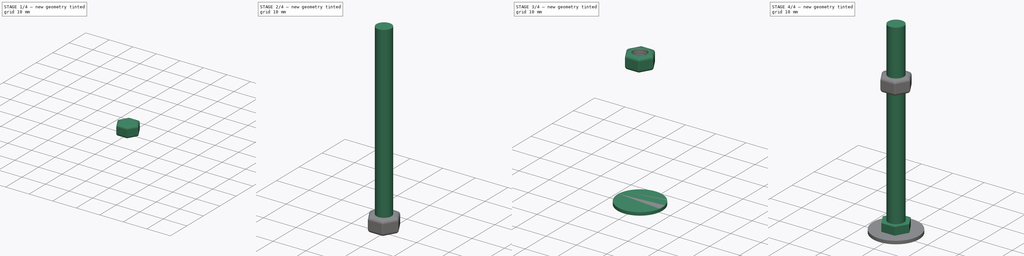
[diagram: build sequence overview — one tinted view per stage of 4, left to right]
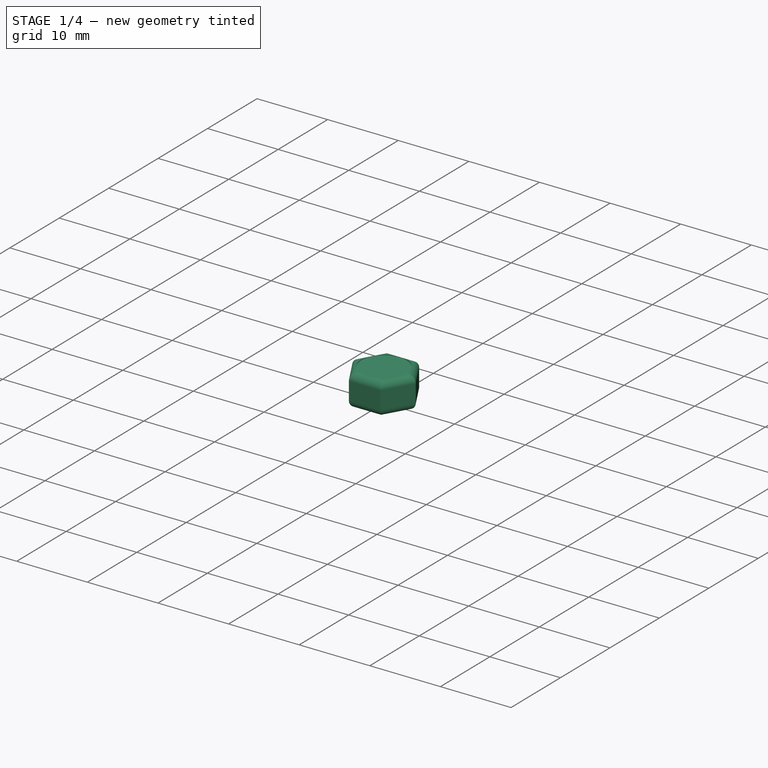
[diagram: stage 1 of 4 — iso view after this stage's code; geometry added in this stage tinted green]
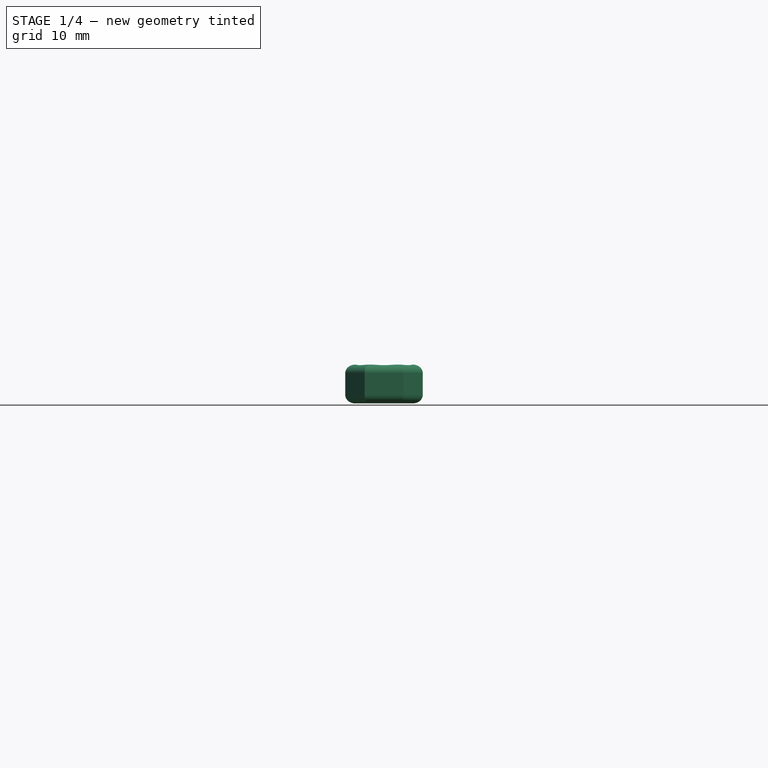
[diagram: stage 1 of 4 — front view after this stage's code; geometry added in this stage tinted green]
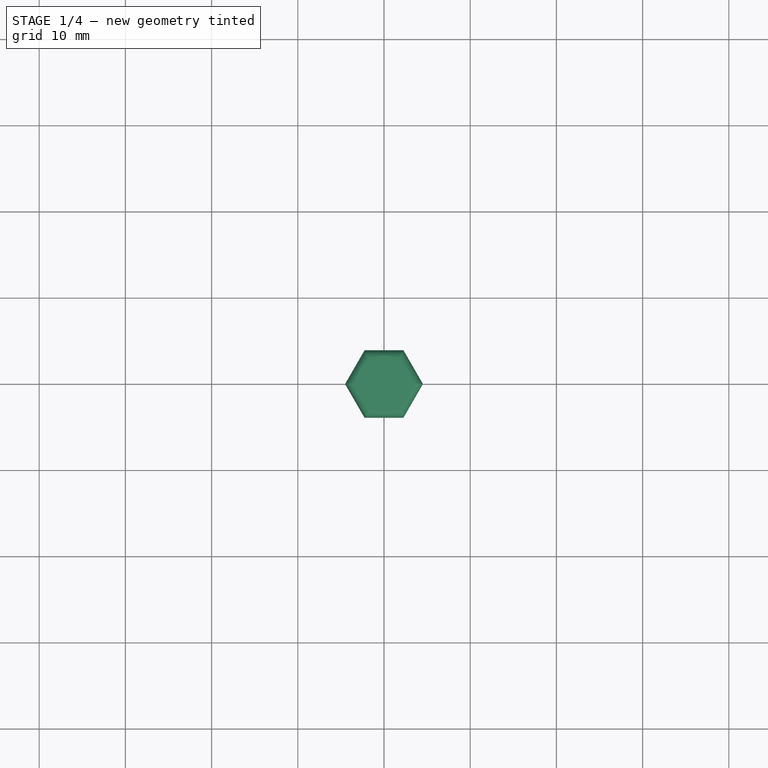
[diagram: stage 1 of 4 — top view after this stage's code; geometry added in this stage tinted green]
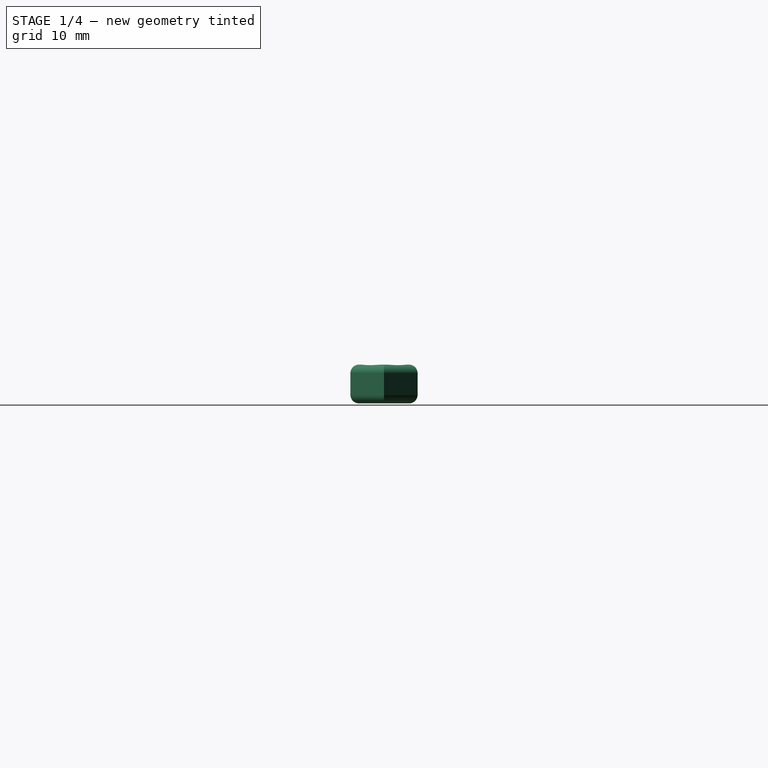
[diagram: stage 1 of 4 — right view after this stage's code; geometry added in this stage tinted green]
FCSTD DOCUMENT  (FreeCAD 1.1R20260325 (Git shallow))
Label: Counterbore2x_5_x_60_mm
License: All rights reserved
LicenseURL: http://en.wikipedia.org/wiki/All_rights_reserved
objects: App::Point×9, Sketcher::SketchObject×8, PartDesign::Body×5, App::Part×4, PartDesign::Pad×3, PartDesign::Hole×3, PartDesign::Fillet×2, App::LinkGroup×2, Spreadsheet::Sheet×1, PartDesign::Revolution×1, PartDesign::AdditiveHelix×1, Part::Cylinder×1, App::Link×1, Part::Cut×1
note: 53 computed .brp shape members not serialized (recipe doc carries the construction recipe); baked Part::Feature solids carry a one-line shape summary decoded from their .brp

FEATURE [App::Part] Part  label="Thread, Part"
  Group = -> [Body]
  Origin = -> Origin001
FEATURE [Sketcher::SketchObject] Sketch003
  ArcFitTolerance = 0
  AttachmentSupport = -> [XY_Plane002]
  ExternalTypes = [0]
  FullyConstrained = true
  MakeInternals = false
  MapMode = 5
  _ExternalGeoVersion = 0
  sketch-geometry (7):
    g0: LineSegment StartX=4.5 StartY=4e-16 StartZ=0 EndX=2.25 EndY=3.89711 EndZ=0
    g1: LineSegment StartX=2.25 StartY=3.89711 StartZ=0 EndX=-2.25 EndY=3.89711 EndZ=0
    g2: LineSegment StartX=-2.25 StartY=3.89711 StartZ=0 EndX=-4.5 EndY=0 EndZ=0
    g3: LineSegment StartX=-4.5 StartY=0 StartZ=0 EndX=-2.25 EndY=-3.89711 EndZ=0
    g4: LineSegment StartX=-2.25 StartY=-3.89711 StartZ=0 EndX=2.25 EndY=-3.89711 EndZ=0
    g5: LineSegment StartX=2.25 StartY=-3.89711 StartZ=0 EndX=4.5 EndY=4e-16 EndZ=0
    g6: Circle [constr] CenterX=0 CenterY=0 CenterZ=0 NormalX=0 NormalY=0 NormalZ=1 AngleXU=0 Radius=4.5
  constraints (16):
    c: Coincident(g0,g1)
    c: Coincident(g1,g2)
    c: Coincident(g2,g3)
    c: Coincident(g3,g4)
    c: Coincident(g4,g5)
    c: Coincident(g5,g0)
    c: Equal(g0, g1-g5) x5
    c: PointOnObject(g0,g6)
    c: PointOnObject(g1,g6)
    c: PointOnObject(g2,g6)
    c: PointOnObject(g3,g6)
    c: PointOnObject(g4,g6)
    c: PointOnObject(g5,g6)
    c: Coincident(g6,g-1)
    c: PointOnObject(g2,g-1)
    c: DistanceX(g6,g0) = 4.5
FEATURE [PartDesign::Pad] Pad001  label="Nut"
  Direction = (0,0,1)
  Length = 4.5
  Length2 = 10
  Profile = -> Sketch003
  ReferenceAxis = -> Sketch003 [N_Axis]
  SideType = 0
  Suppressed = false
  Type = 0
  Type2 = 0
FEATURE [PartDesign::Fillet] Fillet
  Base = -> Pad001 [Edge16,Edge18,Edge4,Edge7,Edge10,Edge13,Edge15,Edge12,Edge9,Edge6,Edge3,Edge17]
  BaseFeature = -> Pad001
  Radius = 1
  SupportTransform = false
  Suppressed = false
  UseAllEdges = false
FEATURE [PartDesign::Body] Body002  label="Washer, Body"
  AllowCompound = true
  Group = -> [Sketch004,Pad002,Sketch006,Hole]
  Origin = -> Origin003
  Placement = pos=(0,0,55.5) rot=(0,0,1;0rad)
  Tip = -> Hole
  expr: .Placement.Base.z = Spreadsheet.threadheight + Spreadsheet.threadfree - 1
FEATURE [App::Part] Part002  label="Washer, Part"
  Group = -> [Body002]
  Origin = -> Origin006
FEATURE [Sketcher::SketchObject] Sketch007
  ArcFitTolerance = 0
  AttachmentSupport = -> [Fillet]
  ExternalTypes = [0]
  FullyConstrained = true
  MakeInternals = false
  MapMode = 5
  Placement = pos=(0,0,4.5) rot=(0,0,1;0rad)
  _ExternalGeoVersion = 0
  sketch-geometry (1):
    g0: Circle CenterX=0 CenterY=0 CenterZ=0 NormalX=0 NormalY=0 NormalZ=1 AngleXU=0 Radius=3.25
  constraints (2):
    c: Coincident(g0,g-1)
    c: Diameter(g0) = 6.5
FEATURE [PartDesign::Hole] Hole001
  BaseFeature = -> Fillet
  BaseProfileType = 6
  CustomThreadClearance = 0
  Depth = 0.1
  DepthType = 0
  Diameter = 6.5
  DrillForDepth = false
  DrillPoint = 0
  DrillPointAngle = 118
  HoleCutCountersinkAngle = 90
  HoleCutCustomValues = false
  HoleCutDepth = 0
  HoleCutDiameter = 6.1
  HoleCutType = 0
  ModelThread = false
  Profile = -> Sketch007
  Suppressed = false
  Tapered = false
  TaperedAngle = 90
  ThreadClass = 0
  ThreadDepth = 0.1
  ThreadDepthType = 0
  ThreadDiameter = 6.5
  ThreadDirection = 0
  ThreadFit = 0
  ThreadSize = 0
  ThreadType = 0
  Threaded = false
  UseCustomThreadClearance = false
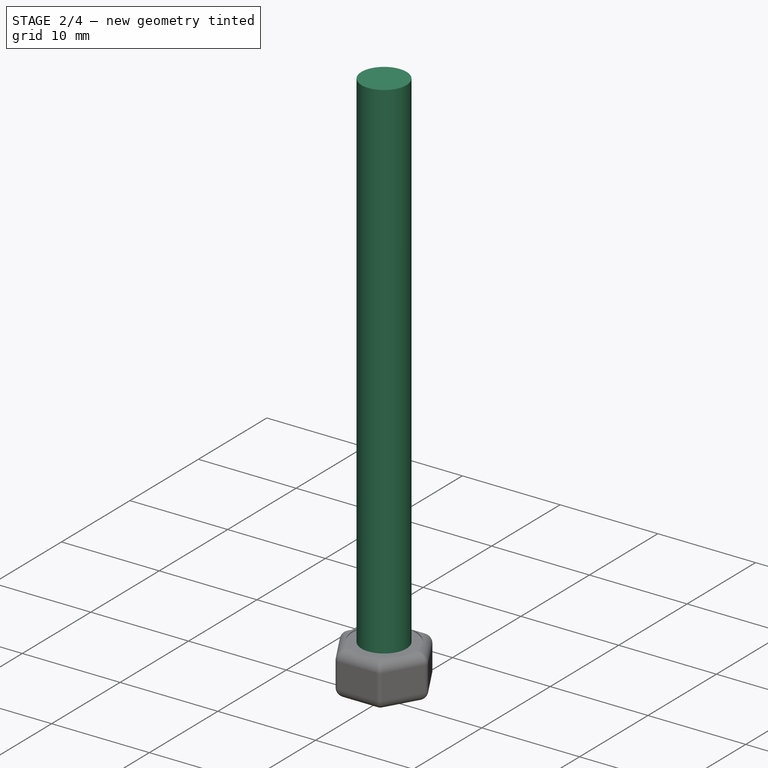
[diagram: stage 2 of 4 — iso view after this stage's code; geometry added in this stage tinted green]
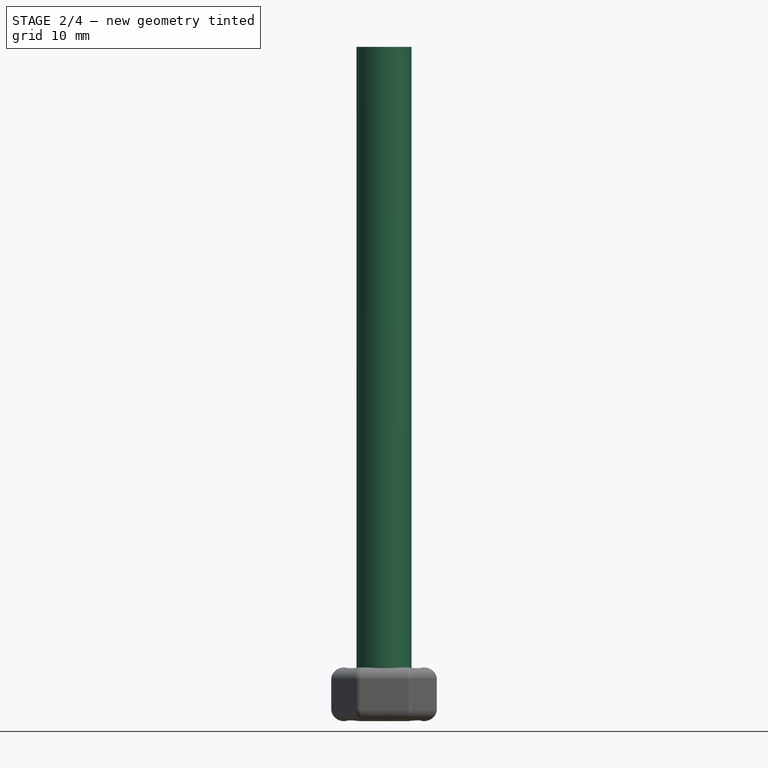
[diagram: stage 2 of 4 — front view after this stage's code; geometry added in this stage tinted green]
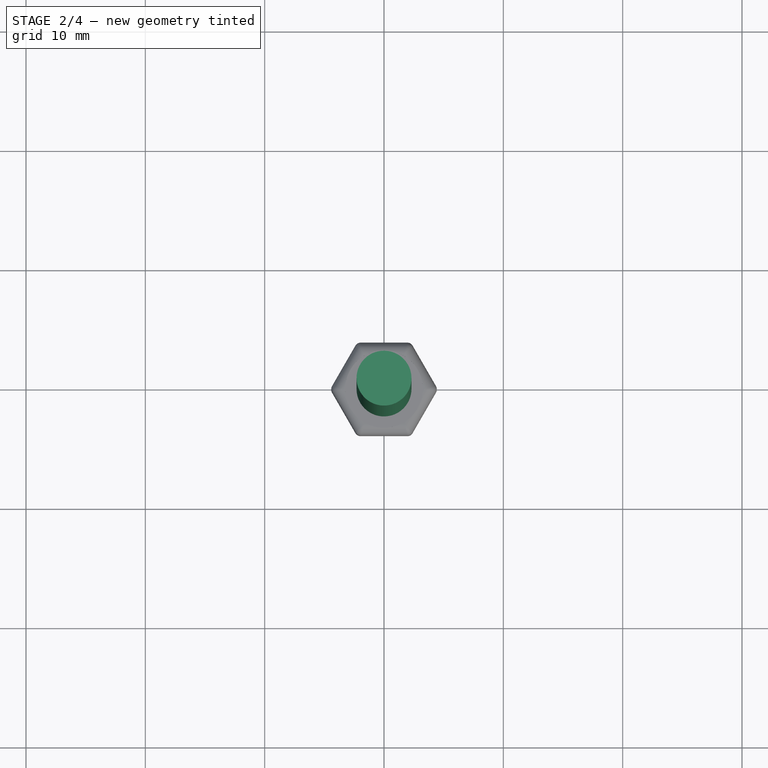
[diagram: stage 2 of 4 — top view after this stage's code; geometry added in this stage tinted green]
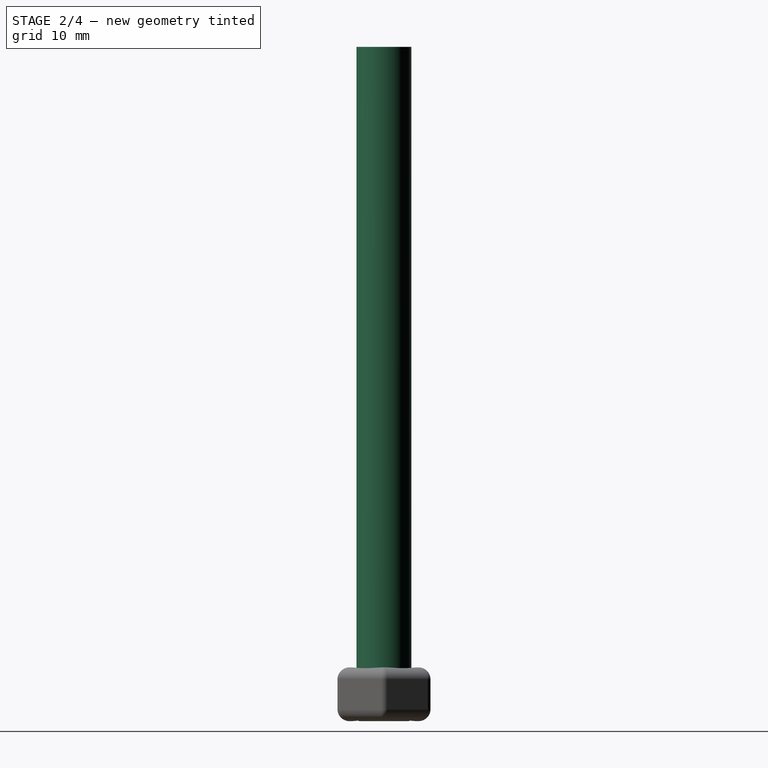
[diagram: stage 2 of 4 — right view after this stage's code; geometry added in this stage tinted green]
FEATURE [Spreadsheet::Sheet] Spreadsheet  label="settings"
  cells = A1='Settings (set here):; A2='Bolt diameter; B2(boltdiameter)=4.6; A3='Bolt height; B3(boltheight)=60; A4='Head diameter; B4(headdiameter)=8.45; A5='Head height; B5(headheight)=3.5; A6='No thread height; B6(threadfree)=1; A7='Thread jump; B7(threadjump)=0.8; A8='Calculated (not change):; A9='Bolt radius; B9(boltradius)==boltdiameter / 2; A10='Head radius; B10(headradius)==headdiameter / 2; A11='Thread core height; B11(coreheight)==boltheight - headheight; A12='Thread height; B12(threadheight)==coreheight - threadfree
FEATURE [Sketcher::SketchObject] Sketch  label="Core, Pattern"
  ArcFitTolerance = 0
  AttachmentSupport = -> [XZ_Plane]
  ExternalTypes = [0]
  FullyConstrained = true
  MakeInternals = false
  MapMode = 5
  Placement = pos=(0,0,0) rot=(1,0,0;1.5708rad)
  _ExternalGeoVersion = 0
  expr: Constraints[13] = Spreadsheet.boltradius
  expr: Constraints[6] = Spreadsheet.boltheight - Spreadsheet.headheight
  sketch-geometry (5):
    g0: LineSegment StartX=0 StartY=0 StartZ=0 EndX=2.1 EndY=0 EndZ=0
    g1: LineSegment StartX=2.3 StartY=0.2 StartZ=0 EndX=2.3 EndY=56.5 EndZ=0
    g2: LineSegment StartX=2.3 StartY=56.5 StartZ=0 EndX=0 EndY=56.5 EndZ=0
    g3: LineSegment StartX=0 StartY=56.5 StartZ=0 EndX=0 EndY=0 EndZ=0
    g4: LineSegment StartX=2.1 StartY=0 StartZ=0 EndX=2.3 EndY=0.2 EndZ=0
  constraints (14):
    c: Coincident(g-1,g0)
    c: Vertical(g1)
    c: PointOnObject(g2,g-2)
    c: Horizontal(g2)
    c: Coincident(g2,g3)
    c: Coincident(g3,g0)
    c: DistanceY(g3,g3) = 56.5
    c: PointOnObject(g0,g-1)
    c: Coincident(g4,g0)
    c: Coincident(g4,g1)
    c: DistanceX(g0,g1) = 0.2
    c: DistanceY(g0,g1) = 0.2
    c: Coincident(g1,g2)
    c: DistanceX(g0,g1) = 2.3
FEATURE [PartDesign::Revolution] Revolution  label="Core"
  Angle = 360
  Angle2 = 0
  Axis = (0,2e-16,1)
  Base = (0,0,0)
  FuseOrder = 0
  Placement = pos=(0,0,0) rot=(1,0,0;1.5708rad)
  Profile = -> Sketch
  ReferenceAxis = -> Sketch [V_Axis]
  Reversed = true
  Suppressed = false
  Type = 0
FEATURE [Sketcher::SketchObject] Sketch008
  ArcFitTolerance = 0
  AttachmentSupport = -> [Hole001]
  ExternalTypes = [0]
  FullyConstrained = true
  MakeInternals = false
  MapMode = 5
  Placement = pos=(0,0,0) rot=(1,0,0;3.14159rad)
  _ExternalGeoVersion = 0
  sketch-geometry (1):
    g0: Circle CenterX=0 CenterY=0 CenterZ=0 NormalX=0 NormalY=0 NormalZ=1 AngleXU=0 Radius=3.25
  constraints (2):
    c: Coincident(g0,g-1)
    c: Diameter(g0) = 6.5
FEATURE [PartDesign::Hole] Hole002
  BaseFeature = -> Hole001
  BaseProfileType = 6
  CustomThreadClearance = 0
  Depth = 0.1
  DepthType = 0
  Diameter = 6.5
  DrillForDepth = false
  DrillPoint = 0
  DrillPointAngle = 118
  HoleCutCountersinkAngle = 90
  HoleCutCustomValues = false
  HoleCutDepth = 0
  HoleCutDiameter = 6.1
  HoleCutType = 0
  ModelThread = false
  Profile = -> Sketch008
  Suppressed = false
  Tapered = false
  TaperedAngle = 90
  ThreadClass = 0
  ThreadDepth = 0.1
  ThreadDepthType = 0
  ThreadDiameter = 6.5
  ThreadDirection = 0
  ThreadFit = 0
  ThreadSize = 0
  ThreadType = 0
  Threaded = false
  UseCustomThreadClearance = false
FEATURE [PartDesign::Fillet] Fillet001
  Base = -> Hole002 [Edge27,Edge12,Edge8,Edge32,Edge75,Edge71]
  BaseFeature = -> Hole002
  Radius = 0.5
  SupportTransform = false
  Suppressed = false
  UseAllEdges = false
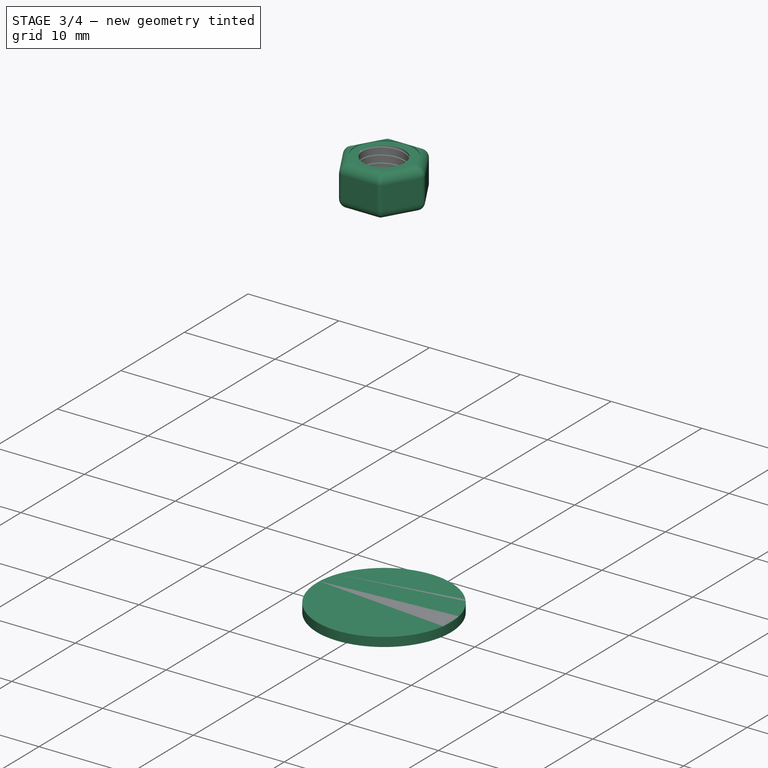
[diagram: stage 3 of 4 — iso view after this stage's code; geometry added in this stage tinted green]
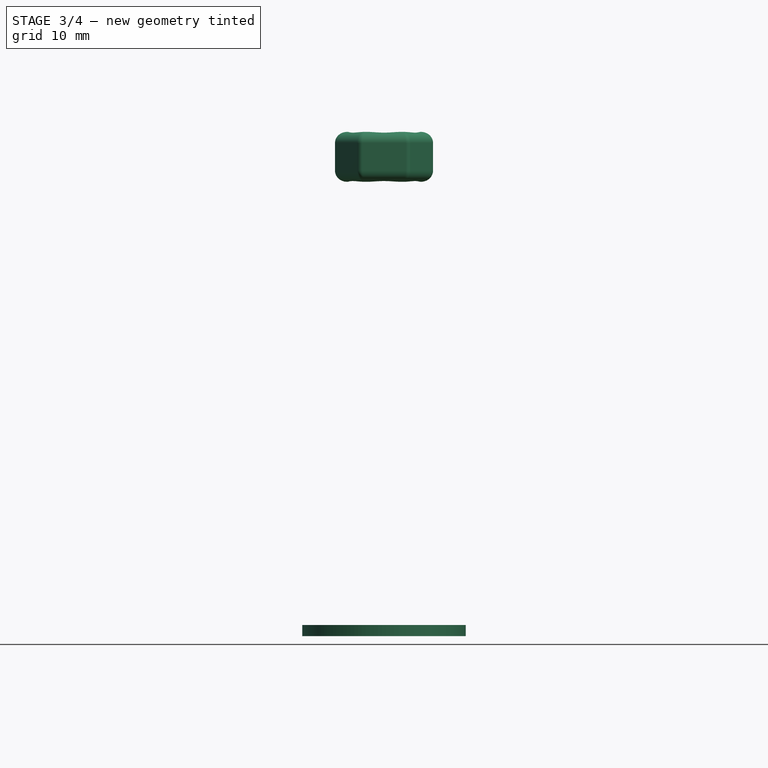
[diagram: stage 3 of 4 — front view after this stage's code; geometry added in this stage tinted green]
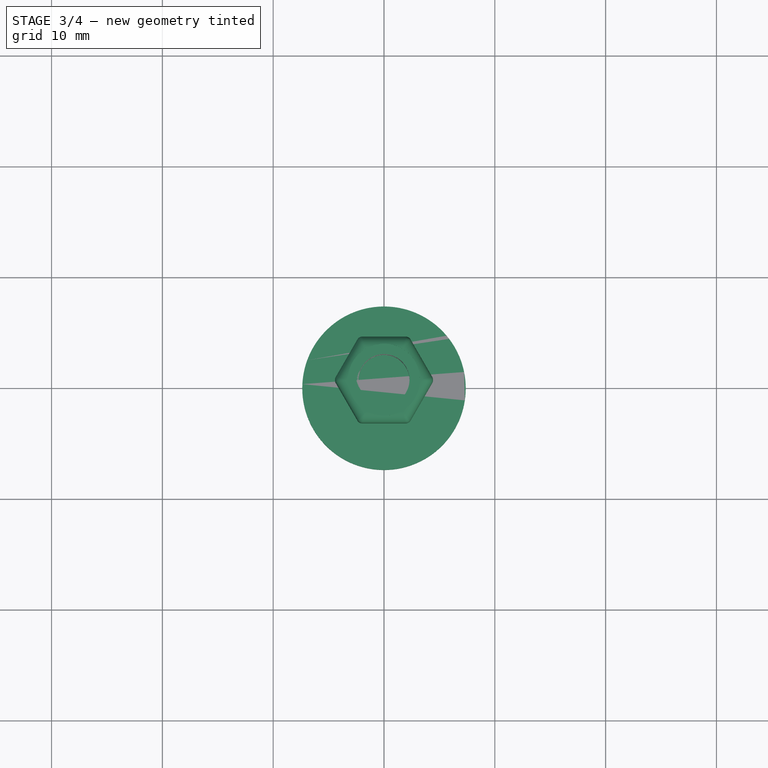
[diagram: stage 3 of 4 — top view after this stage's code; geometry added in this stage tinted green]
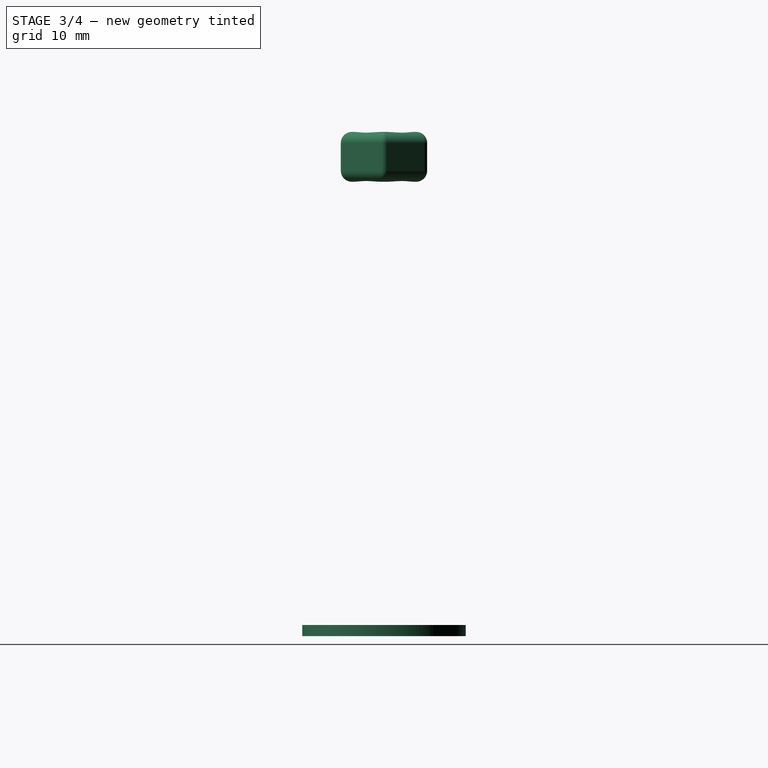
[diagram: stage 3 of 4 — right view after this stage's code; geometry added in this stage tinted green]
FEATURE [Sketcher::SketchObject] Sketch001  label="Thread, Pattern"
  ArcFitTolerance = 0
  AttachmentSupport = -> [XZ_Plane]
  ExternalTypes = [0]
  FullyConstrained = true
  MakeInternals = false
  MapMode = 5
  Placement = pos=(0,0,0) rot=(1,0,0;1.5708rad)
  _ExternalGeoVersion = 0
  expr: Constraints[3] = Spreadsheet.boltradius
  sketch-geometry (3):
    g0: LineSegment StartX=2.3 StartY=0.15 StartZ=0 EndX=2.5 EndY=0.2 EndZ=0
    g1: LineSegment StartX=2.5 StartY=0.2 StartZ=0 EndX=2.3 EndY=0.25 EndZ=0
    g2: LineSegment StartX=2.3 StartY=0.25 StartZ=0 EndX=2.3 EndY=0.15 EndZ=0
  constraints (9):
    c: Coincident(g0,g1)
    c: Equal(g0,g1)
    c: DistanceY(g-1,g0) = 0.2
    c: DistanceX(g-1,g0) = 2.3
    c: DistanceX(g0,g0) = 0.2
    c: DistanceY(g0,g1) = 0.1
    c: Vertical(g1,g0)
    c: Coincident(g2,g1)
    c: Coincident(g2,g0)
FEATURE [PartDesign::AdditiveHelix] AdditiveHelix  label="Thread"
  Angle = 0
  Axis = (0,2e-16,1)
  Base = (0,0,0)
  BaseFeature = -> Revolution
  Growth = 0
  HasBeenEdited = true
  Height = 55.5
  LeftHanded = false
  Mode = 0
  Outside = false
  Pitch = 0.8
  Placement = pos=(0,0,0) rot=(1,0,0;1.5708rad)
  Profile = -> Sketch001
  ReferenceAxis = -> Sketch001 [V_Axis]
  Suppressed = false
  Tolerance = 0.1
  Turns = 69.375
  expr: Height = Spreadsheet.threadheight
  expr: Pitch = Spreadsheet.threadjump
FEATURE [Sketcher::SketchObject] Sketch004
  ArcFitTolerance = 0
  AttachmentSupport = -> [XY_Plane003]
  ExternalTypes = [0]
  FullyConstrained = true
  MakeInternals = false
  MapMode = 5
  _ExternalGeoVersion = 0
  sketch-geometry (1):
    g0: Circle CenterX=0 CenterY=0 CenterZ=0 NormalX=0 NormalY=0 NormalZ=1 AngleXU=0 Radius=7.375
  constraints (2):
    c: Coincident(g0,g-1)
    c: Diameter(g0) = 14.75
FEATURE [PartDesign::Pad] Pad002  label="Washer"
  Direction = (0,0,1)
  Length = 1
  Length2 = 10
  Profile = -> Sketch004
  ReferenceAxis = -> Sketch004 [N_Axis]
  SideType = 0
  Suppressed = false
  Type = 0
  Type2 = 0
FEATURE [PartDesign::Body] Body001  label="Nut, Body"
  AllowCompound = true
  Group = -> [Sketch003,Pad001,Fillet,Sketch007,Hole001,Sketch008,Hole002,Fillet001]
  Origin = -> Origin002
  Placement = pos=(0,0,41) rot=(0,0,1;0rad)
  Tip = -> Fillet001
  expr: .Placement.Base.z = Spreadsheet.boltheight - Spreadsheet.headheight - 15.5
FEATURE [App::Part] Part001  label="Nut, Part"
  Group = -> [Body001]
  Origin = -> Origin005
FEATURE [PartDesign::Body] Body004  label="copy, Thread, Body"
  AllowCompound = true
  Origin = -> Origin009
  Tip = -> AdditiveHelix
FEATURE [Part::Cut] Body0011  label="Cut, Nut, Body"
  Base = -> Body001
  Tool = -> Body004
FEATURE [App::LinkGroup] LinkGroup  label="Counterbore2x 5 x 60 mm"
  ElementList = -> [Cylinder,Part,Part001,Part002,Part003,Link,Body0011]
  LinkMode = 0
  Placement = pos=(0,0,60) rot=(1,0,0;3.14159rad)
  expr: .Placement.Base.z = Spreadsheet.boltheight
FEATURE [App::LinkGroup] LinkGroup001  label="Counterbore2x 5 x 60 mm, clone this"
  ElementList = -> [LinkGroup,Spreadsheet]
  LinkMode = 0
FEATURE [App::Point] Origin010  label="Origin"
  Role = Origin
FEATURE [App::Point] Origin011  label="Origin"
  Role = Origin
FEATURE [App::Point] Origin012  label="Origin"
  Role = Origin
FEATURE [App::Point] Origin013  label="Origin"
  Role = Origin
FEATURE [App::Point] Origin014  label="Origin"
  Role = Origin
FEATURE [App::Point] Origin015  label="Origin"
  Role = Origin
FEATURE [App::Point] Origin016  label="Origin"
  Role = Origin
FEATURE [App::Point] Origin017  label="Origin"
  Role = Origin
FEATURE [App::Point] Origin018  label="Origin"
  Role = Origin
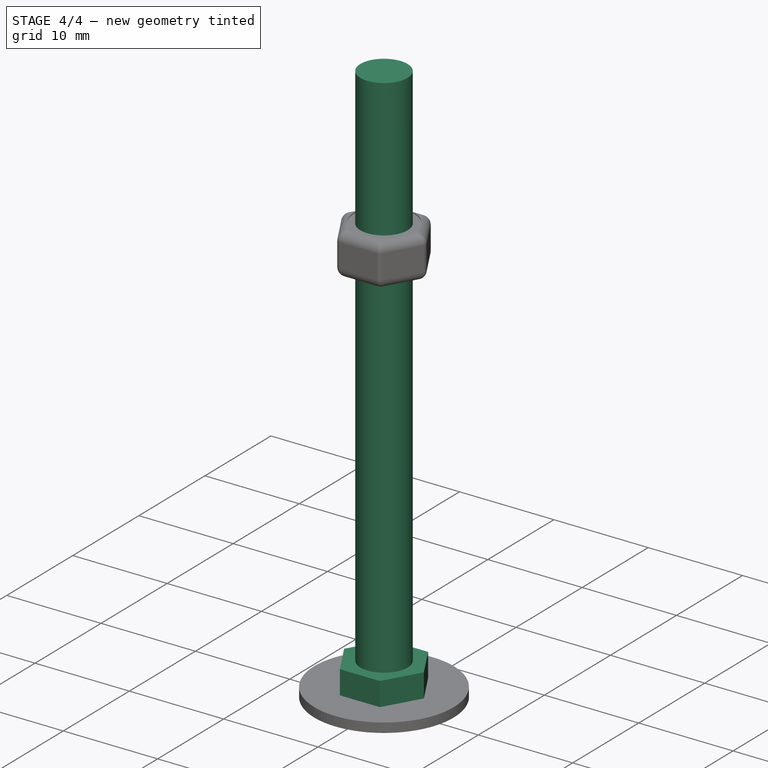
[diagram: stage 4 of 4 — iso view after this stage's code; geometry added in this stage tinted green]
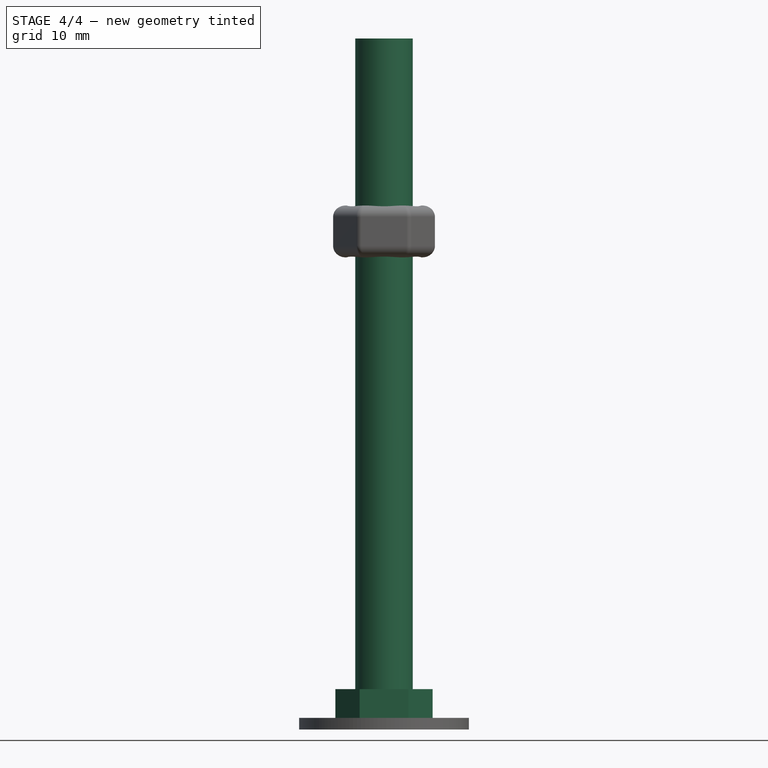
[diagram: stage 4 of 4 — front view after this stage's code; geometry added in this stage tinted green]
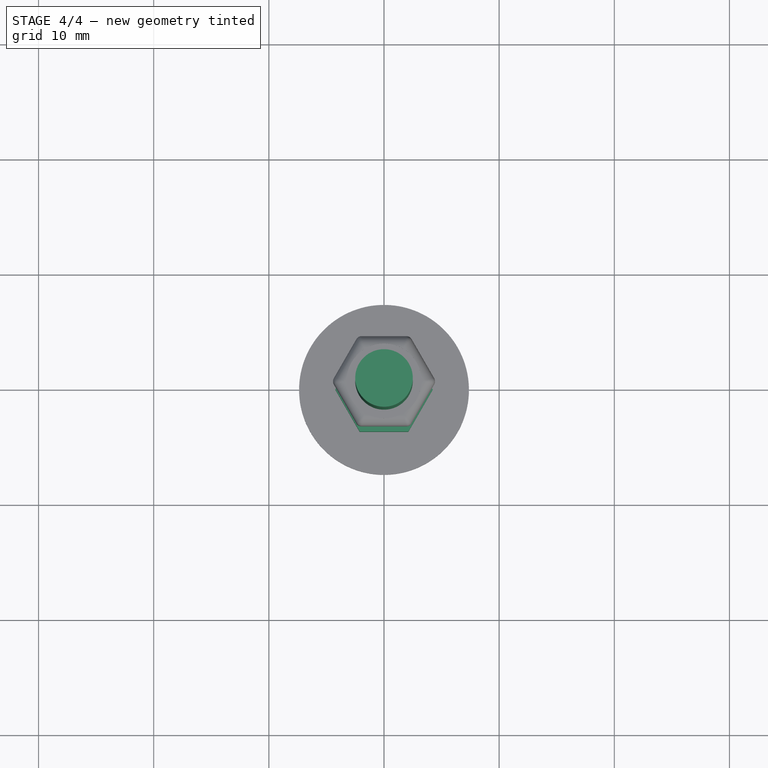
[diagram: stage 4 of 4 — top view after this stage's code; geometry added in this stage tinted green]
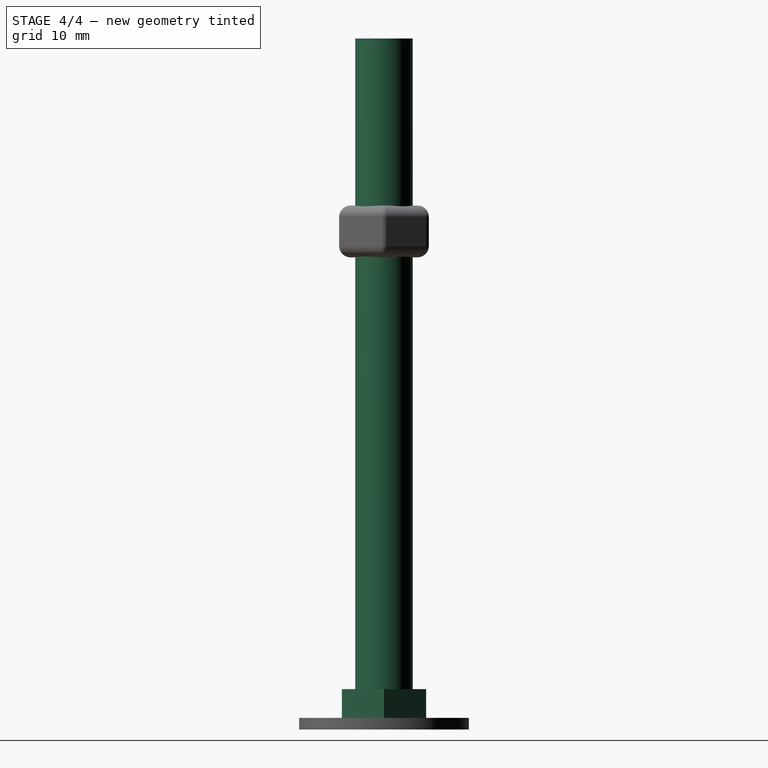
[diagram: stage 4 of 4 — right view after this stage's code; geometry added in this stage tinted green]
FEATURE [PartDesign::Body] Body  label="Thread, Body"
  AllowCompound = true
  Group = -> [Sketch,Revolution,Sketch001,AdditiveHelix]
  Origin = -> Origin
  Tip = -> AdditiveHelix
FEATURE [Part::Cylinder] Cylinder  label="Counterbore2x, Size, Pattern"
  Angle = 360
  AttacherType = Attacher::AttachEngine3D
  FirstAngle = 0
  Height = 60
  Radius = 2.5
  SecondAngle = 0
  expr: Height = Spreadsheet.boltheight
  expr: Radius = Spreadsheet.boltradius + 0.2
FEATURE [Sketcher::SketchObject] Sketch005
  ArcFitTolerance = 0
  AttachmentSupport = -> [XY_Plane008]
  ExternalTypes = [0]
  FullyConstrained = true
  MakeInternals = false
  MapMode = 5
  _ExternalGeoVersion = 0
  expr: Constraints[19] = Spreadsheet.headradius
  sketch-geometry (7):
    g0: LineSegment StartX=2.1125 StartY=-3.65896 StartZ=0 EndX=4.225 EndY=-4e-16 EndZ=0
    g1: LineSegment StartX=4.225 StartY=-4e-16 StartZ=0 EndX=2.1125 EndY=3.65896 EndZ=0
    g2: LineSegment StartX=2.1125 StartY=3.65896 StartZ=0 EndX=-2.1125 EndY=3.65896 EndZ=0
    g3: LineSegment StartX=-2.1125 StartY=3.65896 StartZ=0 EndX=-4.225 EndY=0 EndZ=0
    g4: LineSegment StartX=-4.225 StartY=0 StartZ=0 EndX=-2.1125 EndY=-3.65896 EndZ=0
    g5: LineSegment StartX=-2.1125 StartY=-3.65896 StartZ=0 EndX=2.1125 EndY=-3.65896 EndZ=0
    g6: Circle [constr] CenterX=0 CenterY=0 CenterZ=0 NormalX=0 NormalY=0 NormalZ=1 AngleXU=0 Radius=4.225
  constraints (16):
    c: Coincident(g0,g1)
    c: Coincident(g1,g2)
    c: Coincident(g2,g3)
    c: Coincident(g3,g4)
    c: Coincident(g4,g5)
    c: Coincident(g5,g0)
    c: Equal(g0, g1-g5) x5
    c: PointOnObject(g0,g6)
    c: PointOnObject(g1,g6)
    c: PointOnObject(g2,g6)
    c: PointOnObject(g3,g6)
    c: PointOnObject(g4,g6)
    c: PointOnObject(g5,g6)
    c: Coincident(g6,g-1)
    c: PointOnObject(g3,g-1)
    c: DistanceX(g6,g0) = 4.225
FEATURE [PartDesign::Pad] Pad  label="Head"
  Direction = (0,0,1)
  Length = 3.5
  Length2 = 10
  Profile = -> Sketch005
  ReferenceAxis = -> Sketch005 [N_Axis]
  SideType = 0
  Suppressed = false
  Type = 0
  Type2 = 0
  expr: Length = Spreadsheet.headheight
FEATURE [PartDesign::Body] Body003  label="Head, Body"
  AllowCompound = true
  Group = -> [Sketch005,Pad]
  Origin = -> Origin008
  Placement = pos=(0,0,56.5) rot=(0,0,1;0rad)
  Tip = -> Pad
  expr: .Placement.Base.z = Spreadsheet.threadheight + Spreadsheet.threadfree
FEATURE [App::Part] Part003  label="Head, Part"
  Group = -> [Body003]
  Origin = -> Origin007
FEATURE [App::Link] Link  label="Washer 2, Part"
  LinkPlacement = pos=(0,0,-10) rot=(0,0,1;0rad)
  LinkedObject = -> Part002
  Placement = pos=(0,0,-10) rot=(0,0,1;0rad)
FEATURE [Sketcher::SketchObject] Sketch006
  ArcFitTolerance = 0
  AttachmentSupport = -> [Pad002]
  ExternalTypes = [0]
  FullyConstrained = true
  MakeInternals = false
  MapMode = 5
  Placement = pos=(0,0,1) rot=(0,0,1;0rad)
  _ExternalGeoVersion = 0
  sketch-geometry (1):
    g0: Circle CenterX=0 CenterY=0 CenterZ=0 NormalX=0 NormalY=0 NormalZ=1 AngleXU=0 Radius=2.725
  constraints (2):
    c: Coincident(g0,g-1)
    c: Diameter(g0) = 5.45
FEATURE [PartDesign::Hole] Hole
  BaseFeature = -> Pad002
  BaseProfileType = 6
  CustomThreadClearance = 0
  Depth = 2
  DepthType = 0
  Diameter = 5.45
  DrillForDepth = false
  DrillPoint = 1
  DrillPointAngle = 118
  HoleCutCountersinkAngle = 90
  HoleCutCustomValues = false
  HoleCutDepth = 0
  HoleCutDiameter = 6.1
  HoleCutType = 0
  ModelThread = false
  Profile = -> Sketch006
  Suppressed = false
  Tapered = false
  TaperedAngle = 90
  ThreadClass = 0
  ThreadDepth = 2
  ThreadDepthType = 0
  ThreadDiameter = 5.45
  ThreadDirection = 0
  ThreadFit = 0
  ThreadSize = 0
  ThreadType = 0
  Threaded = false
  UseCustomThreadClearance = false
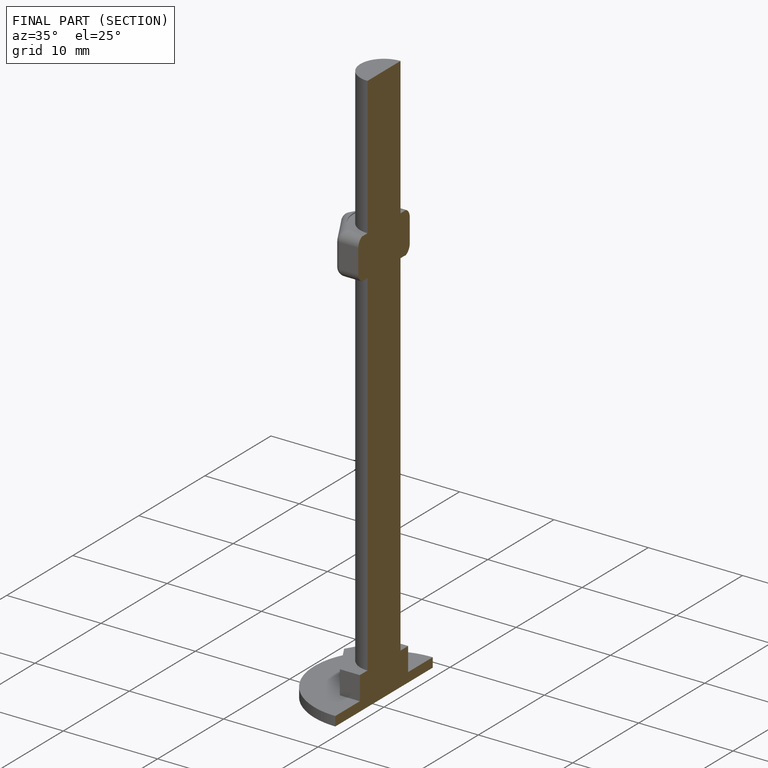
[diagram: finished part — half-section view (interior)]
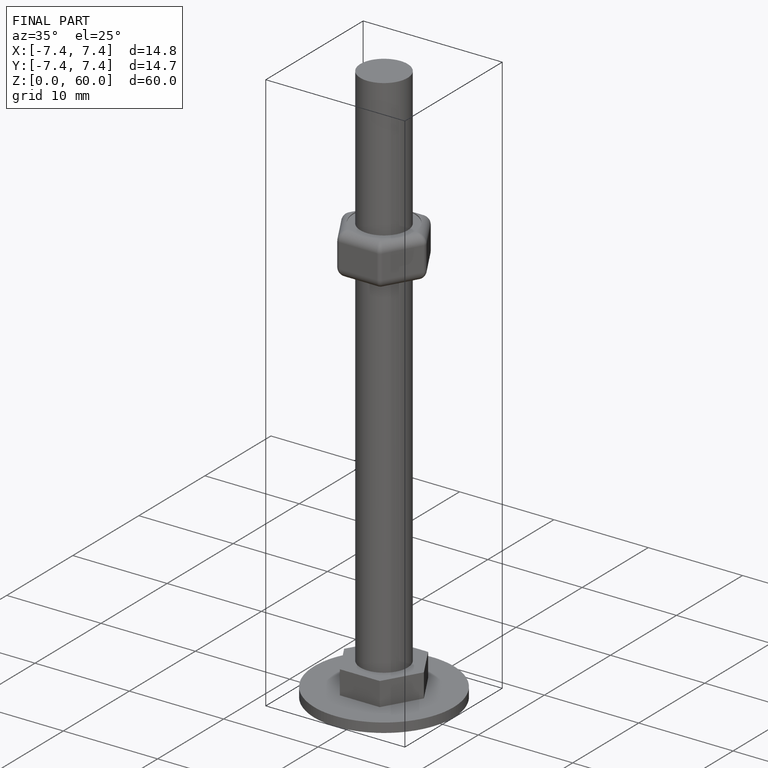
[diagram: finished part — iso view with bounding-box wireframe]
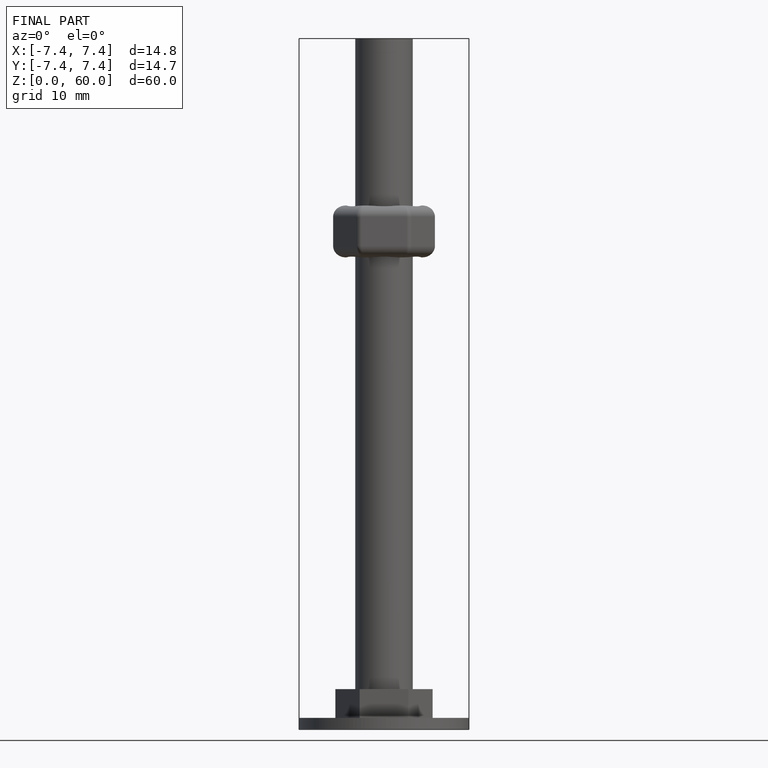
[diagram: finished part — front view with bounding-box wireframe]
